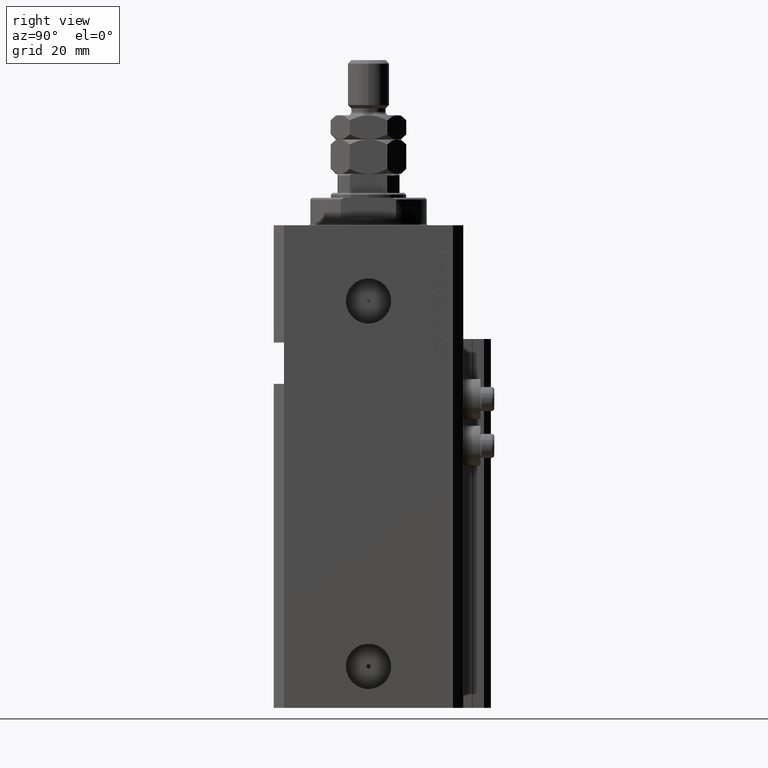
[diagram: clean part render]
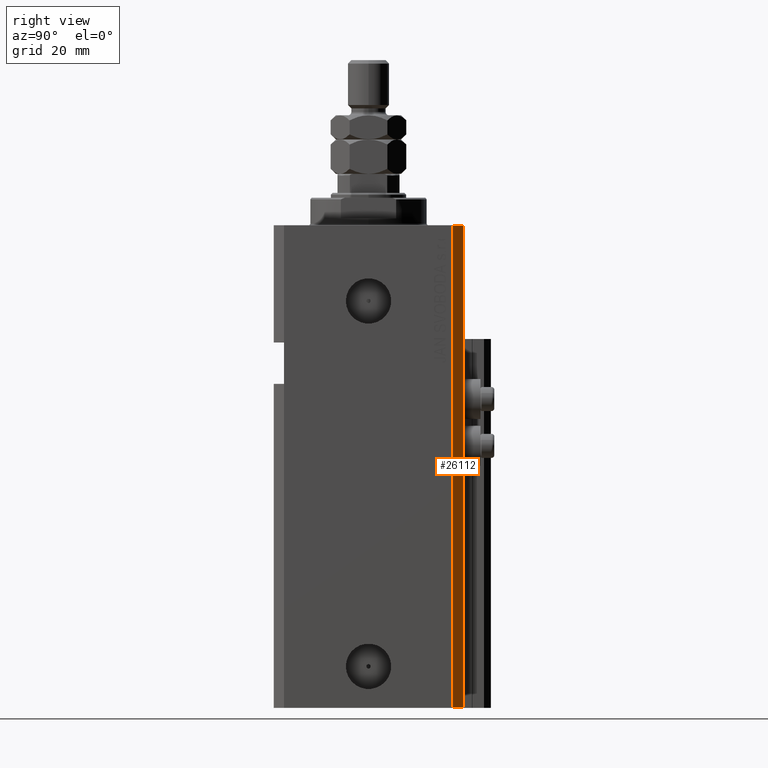
[diagram: same view with one face highlighted and labeled with its STEP entity id]
A machine part, right view. The second image highlights one B-rep face of the part: STEP entity #26112.
In plain terms, the highlighted planar face has unit normal (0.7071, 0.7071, 0).
Its self-contained STEP definition (entity closure, byte-faithful):
#1454 = EDGE_CURVE ( 'NONE', #14793, #45785, #2529, .T. ) ;
#2529 = LINE ( 'NONE', #39484, #37164 ) ;
#4371 = FACE_OUTER_BOUND ( 'NONE', #26364, .T. ) ;
#4750 = AXIS2_PLACEMENT_3D ( 'NONE', #4865, #42319, #11972 ) ;
#4865 = CARTESIAN_POINT ( 'NONE',  ( 37.50000000000051870, 24.49999999999995381, -140.0000000000000000 ) ) ;
#8226 = CARTESIAN_POINT ( 'NONE',  ( 37.50000000000051870, 24.49999999999995381, 0.000000000000000000 ) ) ;
#8397 = VECTOR ( 'NONE', #21111, 1000.000000000000000 ) ;
#9903 = CARTESIAN_POINT ( 'NONE',  ( 34.50000000000056843, 27.50000000000000000, 0.000000000000000000 ) ) ;
#11145 = CARTESIAN_POINT ( 'NONE',  ( 37.50000000000051870, 24.49999999999995381, -140.0000000000000000 ) ) ;
#11711 = VECTOR ( 'NONE', #37895, 1000.000000000000114 ) ;
#11972 = DIRECTION ( 'NONE',  ( -0.7071067811865356934, 0.7071067811865593411, 0.000000000000000000 ) ) ;
#12536 = VERTEX_POINT ( 'NONE', #9903 ) ;
#12752 = VERTEX_POINT ( 'NONE', #26531 ) ;
#13836 = EDGE_CURVE ( 'NONE', #12752, #12536, #16458, .T. ) ;
#14793 = VERTEX_POINT ( 'NONE', #11145 ) ;
#14795 = VECTOR ( 'NONE', #41425, 1000.000000000000114 ) ;
#16458 = LINE ( 'NONE', #35569, #8397 ) ;
#17440 = DIRECTION ( 'NONE',  ( 0.000000000000000000, 0.000000000000000000, 1.000000000000000000 ) ) ;
#21111 = DIRECTION ( 'NONE',  ( 0.000000000000000000, 0.000000000000000000, 1.000000000000000000 ) ) ;
#21431 = ORIENTED_EDGE ( 'NONE', *, *, #22813, .T. ) ;
#22813 = EDGE_CURVE ( 'NONE', #14793, #12752, #45358, .T. ) ;
#22962 = CARTESIAN_POINT ( 'NONE',  ( 37.50000000000051870, 24.49999999999995381, 0.000000000000000000 ) ) ;
#23474 = EDGE_CURVE ( 'NONE', #45785, #12536, #37651, .T. ) ;
#25887 = ORIENTED_EDGE ( 'NONE', *, *, #1454, .F. ) ;
#26112 = ADVANCED_FACE ( 'NONE', ( #4371 ), #30595, .T. ) ;
#26364 = EDGE_LOOP ( 'NONE', ( #37708, #25887, #21431, #37383 ) ) ;
#26531 = CARTESIAN_POINT ( 'NONE',  ( 34.50000000000056843, 27.50000000000000000, -140.0000000000000000 ) ) ;
#30595 = PLANE ( 'NONE',  #4750 ) ;
#35569 = CARTESIAN_POINT ( 'NONE',  ( 34.50000000000056843, 27.50000000000000000, -140.0000000000000000 ) ) ;
#37164 = VECTOR ( 'NONE', #17440, 1000.000000000000000 ) ;
#37383 = ORIENTED_EDGE ( 'NONE', *, *, #13836, .T. ) ;
#37651 = LINE ( 'NONE', #22962, #11711 ) ;
#37708 = ORIENTED_EDGE ( 'NONE', *, *, #23474, .F. ) ;
#37895 = DIRECTION ( 'NONE',  ( -0.7071067811865356934, 0.7071067811865594521, 0.000000000000000000 ) ) ;
#39484 = CARTESIAN_POINT ( 'NONE',  ( 37.50000000000051870, 24.49999999999995381, -140.0000000000000000 ) ) ;
#41425 = DIRECTION ( 'NONE',  ( -0.7071067811865356934, 0.7071067811865594521, 0.000000000000000000 ) ) ;
#41904 = CARTESIAN_POINT ( 'NONE',  ( 37.50000000000051870, 24.49999999999995381, -140.0000000000000000 ) ) ;
#42319 = DIRECTION ( 'NONE',  ( 0.7071067811865593411, 0.7071067811865356934, -0.000000000000000000 ) ) ;
#45358 = LINE ( 'NONE', #41904, #14795 ) ;
#45785 = VERTEX_POINT ( 'NONE', #8226 ) ;